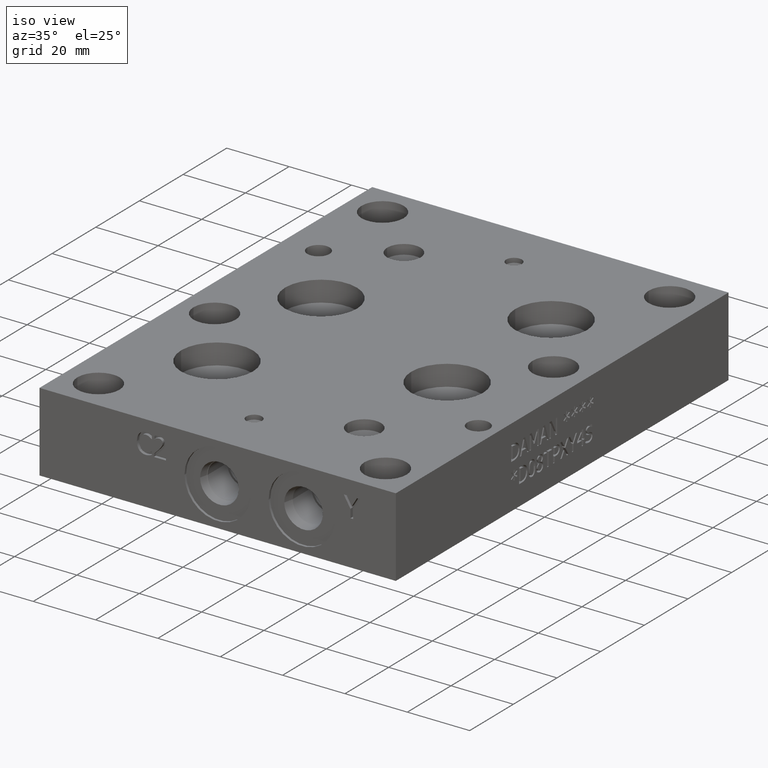
[diagram: clean part render]
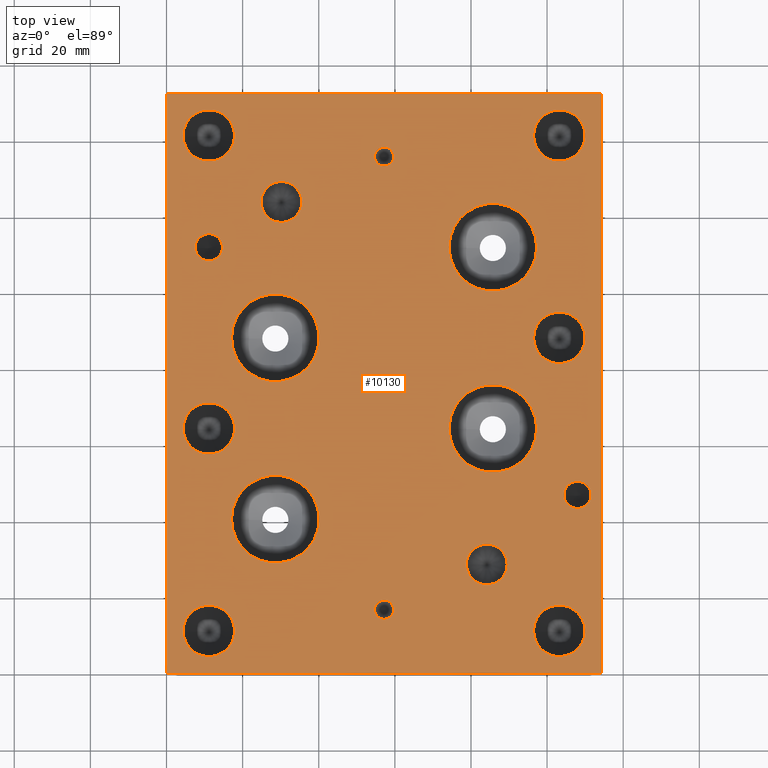
[diagram: tour spotlight — one face highlighted and labeled with its STEP entity id]
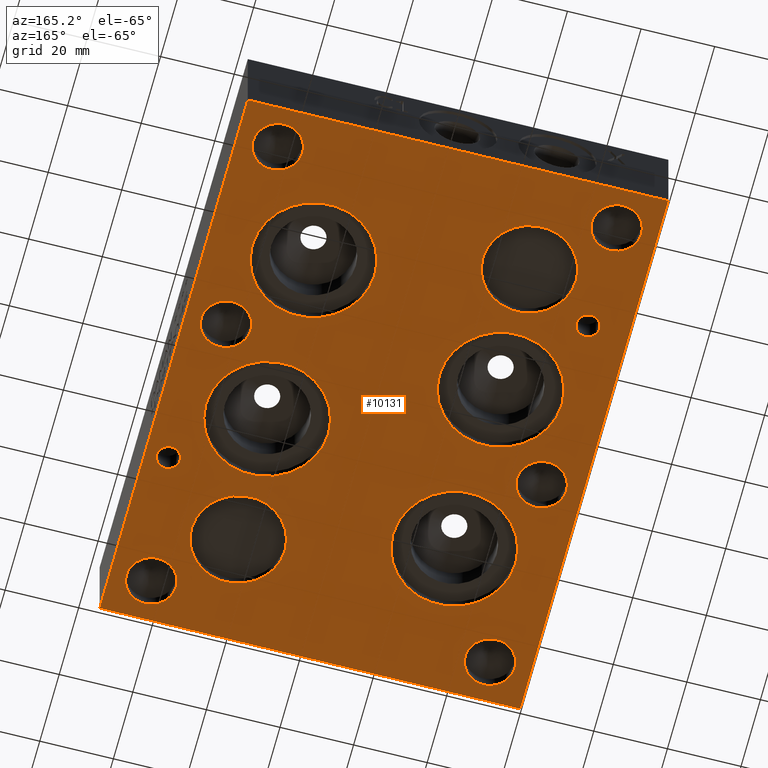
[diagram: tour spotlight — one face highlighted and labeled with its STEP entity id]
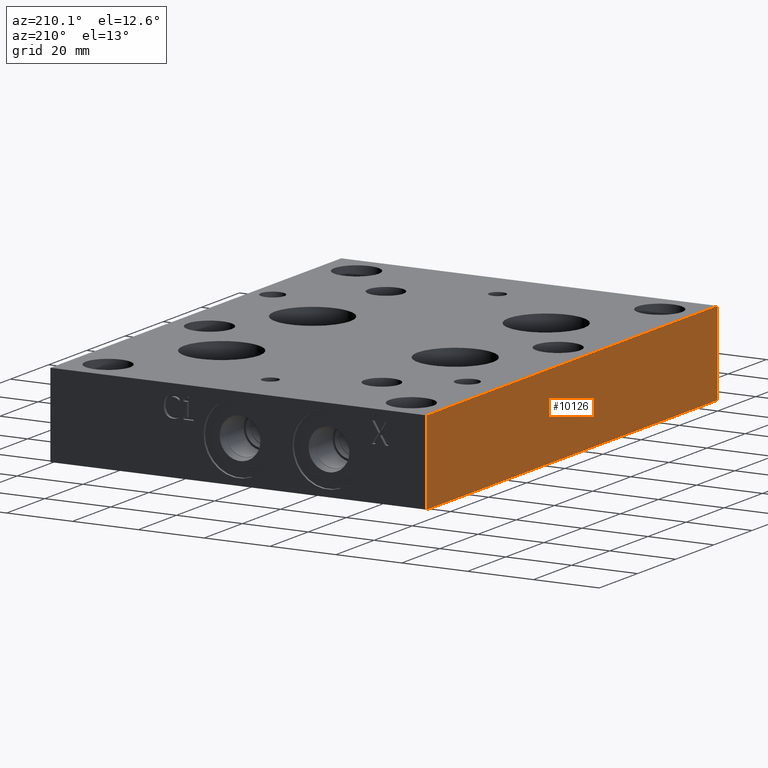
[diagram: tour spotlight — one face highlighted and labeled with its STEP entity id]
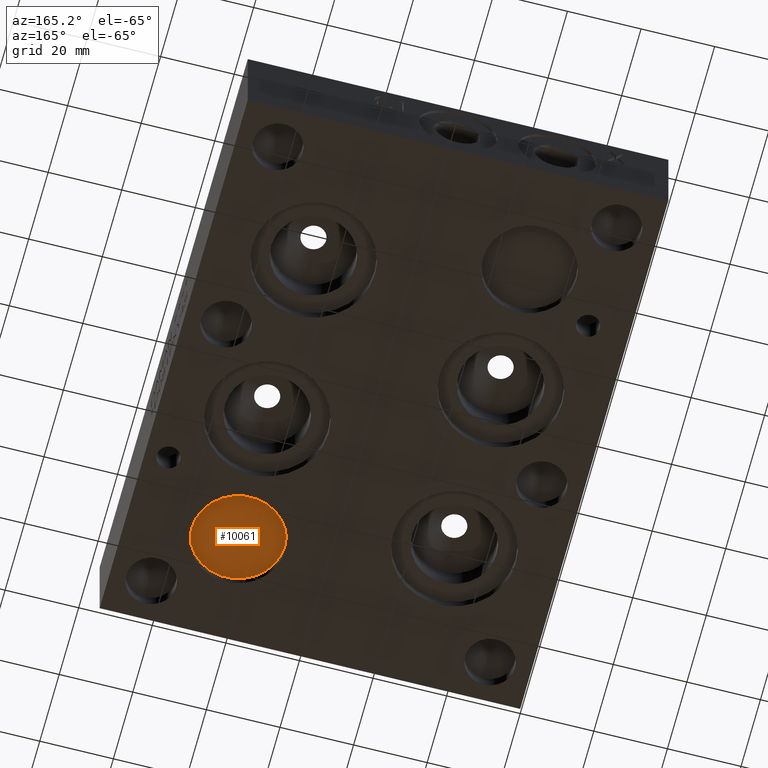
[diagram: tour spotlight — one face highlighted and labeled with its STEP entity id]
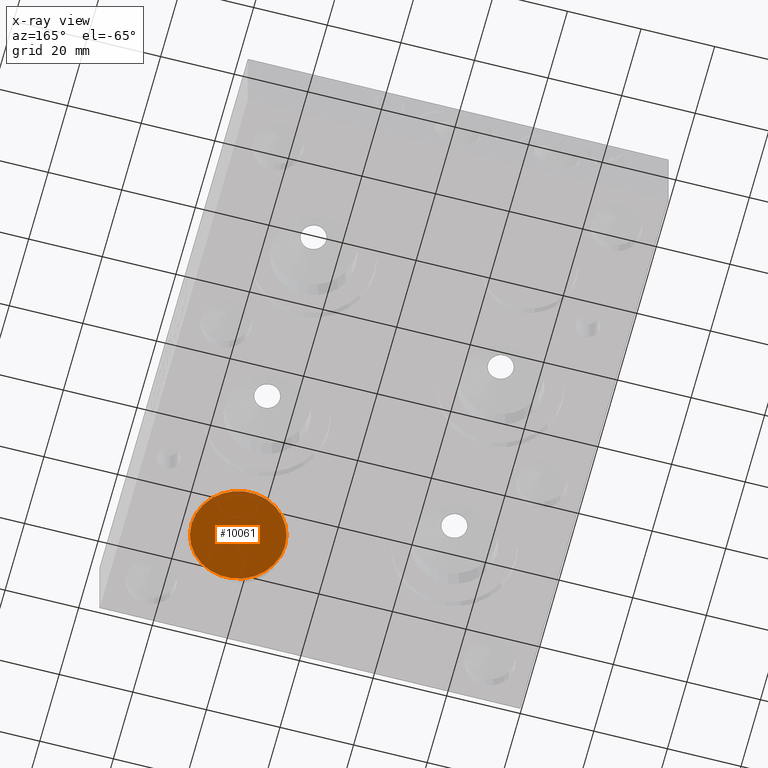
[diagram: x-ray of the same camera — body ghosted, this tour face saturated]
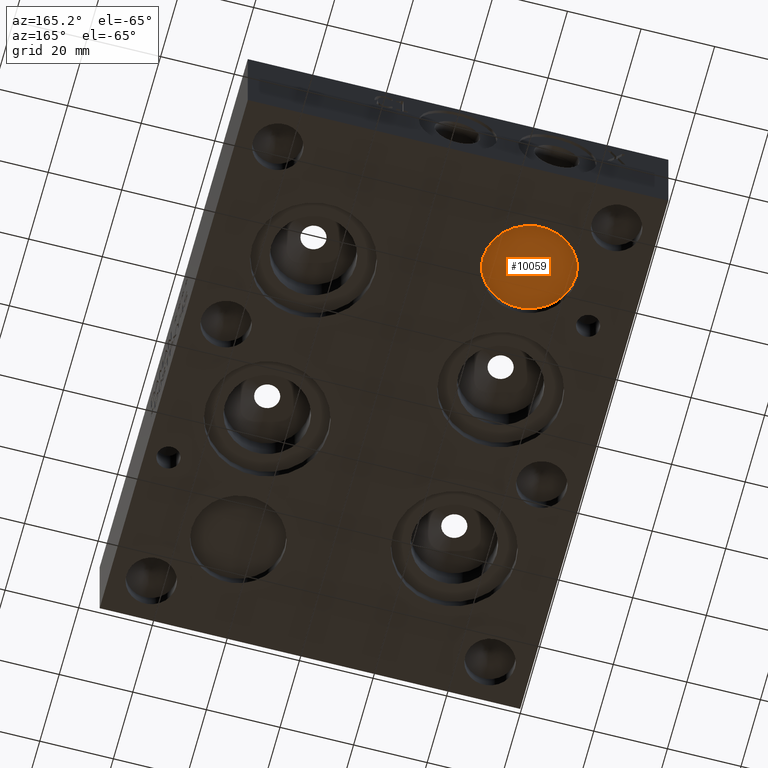
[diagram: tour spotlight — one face highlighted and labeled with its STEP entity id]
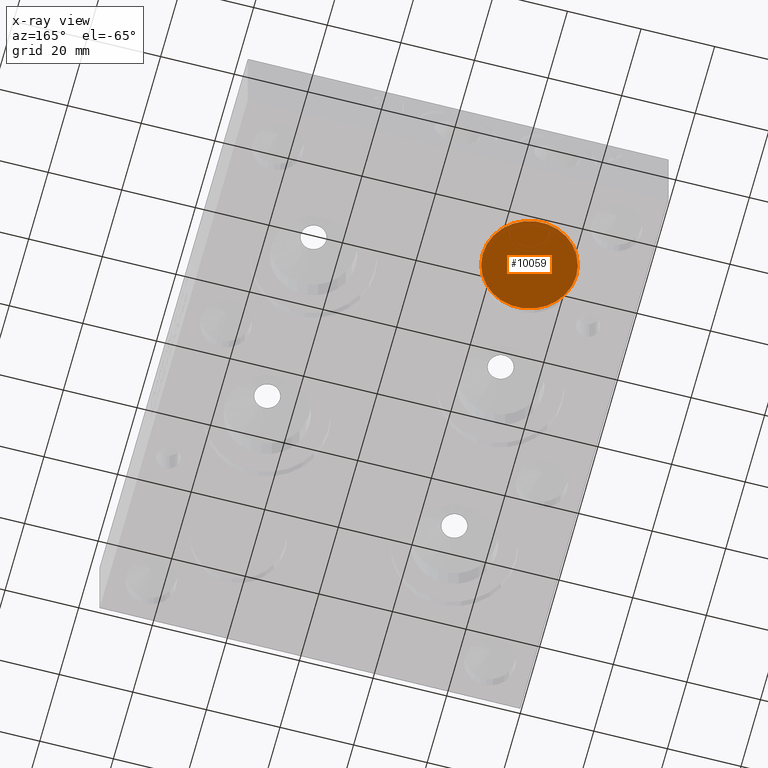
[diagram: x-ray of the same camera — body ghosted, this tour face saturated]
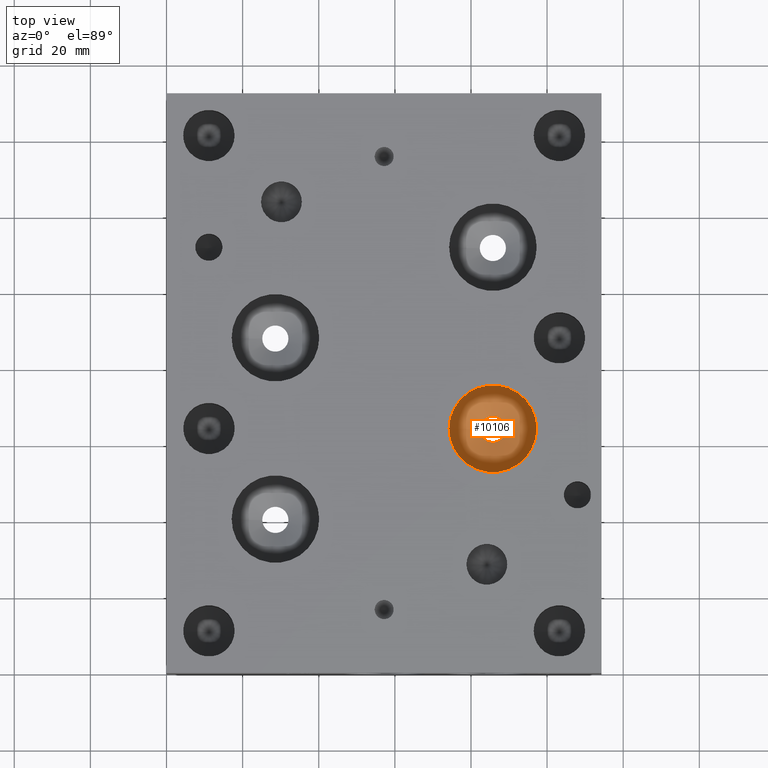
[diagram: tour spotlight — one face highlighted and labeled with its STEP entity id]
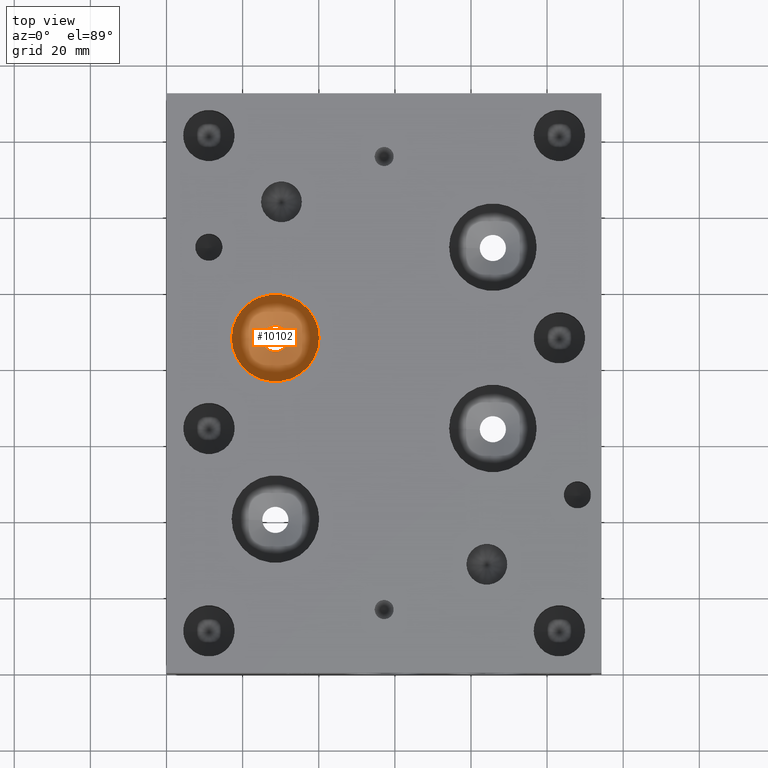
[diagram: tour spotlight — one face highlighted and labeled with its STEP entity id]
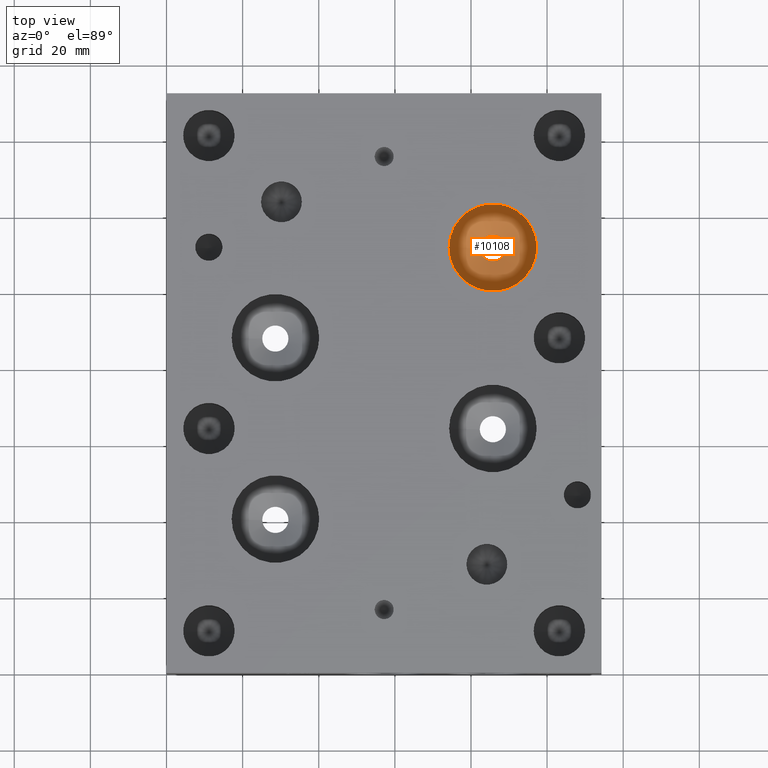
[diagram: tour spotlight — one face highlighted and labeled with its STEP entity id]
A machine part: a face-by-face anatomy tour. The part has 511 B-rep faces; the first image is the clean iso view, then the 8 largest visible faces are spotlighted one at a time (largest first), each with its STEP entity span.

Face 1 — top view, entity #10130. In plain terms, the highlighted planar face has unit normal (0, 0, 1).
Definition (entity closure, byte-faithful):
#207=CIRCLE('',#10648,2.5019);
#208=CIRCLE('',#10649,2.5019);
#211=CIRCLE('',#10654,2.5019);
#212=CIRCLE('',#10655,2.5019);
#215=CIRCLE('',#10660,5.3594);
#216=CIRCLE('',#10661,5.3594);
#219=CIRCLE('',#10666,5.3594);
#220=CIRCLE('',#10667,5.3594);
#223=CIRCLE('',#10672,11.5062);
#224=CIRCLE('',#10673,11.5062);
#227=CIRCLE('',#10678,11.5062);
#228=CIRCLE('',#10679,11.5062);
#231=CIRCLE('',#10684,11.50874);
#232=CIRCLE('',#10685,11.50874);
#235=CIRCLE('',#10690,11.50874);
#236=CIRCLE('',#10691,11.50874);
#239=CIRCLE('',#10696,3.5687);
#240=CIRCLE('',#10697,3.5687);
#243=CIRCLE('',#10702,3.5687);
#244=CIRCLE('',#10703,3.5687);
#247=CIRCLE('',#10708,6.7564);
#248=CIRCLE('',#10709,6.7564);
#251=CIRCLE('',#10714,6.7564);
#252=CIRCLE('',#10715,6.7564);
#255=CIRCLE('',#10720,6.7564);
#256=CIRCLE('',#10721,6.7564);
#259=CIRCLE('',#10726,6.7564);
#260=CIRCLE('',#10727,6.7564);
#263=CIRCLE('',#10732,6.7564);
#264=CIRCLE('',#10733,6.7564);
#267=CIRCLE('',#10738,6.7564);
#268=CIRCLE('',#10739,6.7564);
#362=FACE_BOUND('',#1807,.T.);
#363=FACE_BOUND('',#1808,.T.);
#364=FACE_BOUND('',#1809,.T.);
#365=FACE_BOUND('',#1810,.T.);
#366=FACE_BOUND('',#1811,.T.);
#367=FACE_BOUND('',#1812,.T.);
#368=FACE_BOUND('',#1813,.T.);
#369=FACE_BOUND('',#1814,.T.);
#370=FACE_BOUND('',#1815,.T.);
#371=FACE_BOUND('',#1816,.T.);
#372=FACE_BOUND('',#1817,.T.);
#373=FACE_BOUND('',#1818,.T.);
#374=FACE_BOUND('',#1819,.T.);
#375=FACE_BOUND('',#1820,.T.);
#376=FACE_BOUND('',#1821,.T.);
#377=FACE_BOUND('',#1822,.T.);
#1246=FACE_OUTER_BOUND('',#1806,.T.);
#1806=EDGE_LOOP('',(#8864,#8865,#8866,#8867));
#1807=EDGE_LOOP('',(#8868,#8869));
#1808=EDGE_LOOP('',(#8870,#8871));
#1809=EDGE_LOOP('',(#8872,#8873));
#1810=EDGE_LOOP('',(#8874,#8875));
#1811=EDGE_LOOP('',(#8876,#8877));
#1812=EDGE_LOOP('',(#8878,#8879));
#1813=EDGE_LOOP('',(#8880,#8881));
#1814=EDGE_LOOP('',(#8882,#8883));
#1815=EDGE_LOOP('',(#8884,#8885));
#1816=EDGE_LOOP('',(#8886,#8887));
#1817=EDGE_LOOP('',(#8888,#8889));
#1818=EDGE_LOOP('',(#8890,#8891));
#1819=EDGE_LOOP('',(#8892,#8893));
#1820=EDGE_LOOP('',(#8894,#8895));
#1821=EDGE_LOOP('',(#8896,#8897));
#1822=EDGE_LOOP('',(#8898,#8899));
#2143=LINE('',#14608,#3109);
#2798=LINE('',#17272,#3764);
#2801=LINE('',#17276,#3767);
#2803=LINE('',#17280,#3769);
#3109=VECTOR('',#11233,10.);
#3764=VECTOR('',#12898,10.);
#3767=VECTOR('',#12903,10.);
#3769=VECTOR('',#12909,10.);
#4058=VERTEX_POINT('',#14605);
#4059=VERTEX_POINT('',#14607);
#4655=VERTEX_POINT('',#17069);
#4656=VERTEX_POINT('',#17070);
#4660=VERTEX_POINT('',#17082);
#4661=VERTEX_POINT('',#17083);
#4665=VERTEX_POINT('',#17095);
#4666=VERTEX_POINT('',#17096);
#4670=VERTEX_POINT('',#17108);
#4671=VERTEX_POINT('',#17109);
#4674=VERTEX_POINT('',#17120);
#4675=VERTEX_POINT('',#17121);
#4678=VERTEX_POINT('',#17132);
#4679=VERTEX_POINT('',#17133);
#4682=VERTEX_POINT('',#17144);
#4683=VERTEX_POINT('',#17145);
#4686=VERTEX_POINT('',#17156);
#4687=VERTEX_POINT('',#17157);
#4691=VERTEX_POINT('',#17169);
#4692=VERTEX_POINT('',#17170);
#4696=VERTEX_POINT('',#17182);
#4697=VERTEX_POINT('',#17183);
#4701=VERTEX_POINT('',#17195);
#4702=VERTEX_POINT('',#17196);
#4706=VERTEX_POINT('',#17208);
#4707=VERTEX_POINT('',#17209);
#4711=VERTEX_POINT('',#17221);
#4712=VERTEX_POINT('',#17222);
#4716=VERTEX_POINT('',#17234);
#4717=VERTEX_POINT('',#17235);
#4721=VERTEX_POINT('',#17247);
#4722=VERTEX_POINT('',#17248);
#4726=VERTEX_POINT('',#17260);
#4727=VERTEX_POINT('',#17261);
#4730=VERTEX_POINT('',#17269);
#4731=VERTEX_POINT('',#17271);
#5163=EDGE_CURVE('',#4059,#4058,#2143,.T.);
#6031=EDGE_CURVE('',#4655,#4656,#207,.T.);
#6032=EDGE_CURVE('',#4656,#4655,#208,.T.);
#6037=EDGE_CURVE('',#4660,#4661,#211,.T.);
#6038=EDGE_CURVE('',#4661,#4660,#212,.T.);
#6043=EDGE_CURVE('',#4665,#4666,#215,.T.);
#6044=EDGE_CURVE('',#4666,#4665,#216,.T.);
#6049=EDGE_CURVE('',#4670,#4671,#219,.T.);
#6050=EDGE_CURVE('',#4671,#4670,#220,.T.);
#6055=EDGE_CURVE('',#4674,#4675,#223,.T.);
#6056=EDGE_CURVE('',#4675,#4674,#224,.T.);
#6061=EDGE_CURVE('',#4678,#4679,#227,.T.);
#6062=EDGE_CURVE('',#4679,#4678,#228,.T.);
#6067=EDGE_CURVE('',#4682,#4683,#231,.T.);
#6068=EDGE_CURVE('',#4683,#4682,#232,.T.);
#6073=EDGE_CURVE('',#4686,#4687,#235,.T.);
#6074=EDGE_CURVE('',#4687,#4686,#236,.T.);
#6079=EDGE_CURVE('',#4691,#4692,#239,.T.);
#6080=EDGE_CURVE('',#4692,#4691,#240,.T.);
#6085=EDGE_CURVE('',#4696,#4697,#243,.T.);
#6086=EDGE_CURVE('',#4697,#4696,#244,.T.);
#6091=EDGE_CURVE('',#4701,#4702,#247,.T.);
#6092=EDGE_CURVE('',#4702,#4701,#248,.T.);
#6097=EDGE_CURVE('',#4706,#4707,#251,.T.);
#6098=EDGE_CURVE('',#4707,#4706,#252,.T.);
#6103=EDGE_CURVE('',#4711,#4712,#255,.T.);
#6104=EDGE_CURVE('',#4712,#4711,#256,.T.);
#6109=EDGE_CURVE('',#4716,#4717,#259,.T.);
#6110=EDGE_CURVE('',#4717,#4716,#260,.T.);
#6115=EDGE_CURVE('',#4721,#4722,#263,.T.);
#6116=EDGE_CURVE('',#4722,#4721,#264,.T.);
#6121=EDGE_CURVE('',#4726,#4727,#267,.T.);
#6122=EDGE_CURVE('',#4727,#4726,#268,.T.);
#6126=EDGE_CURVE('',#4731,#4730,#2798,.T.);
#6129=EDGE_CURVE('',#4058,#4731,#2801,.T.);
#6131=EDGE_CURVE('',#4730,#4059,#2803,.T.);
#8864=ORIENTED_EDGE('',*,*,#6131,.T.);
#8865=ORIENTED_EDGE('',*,*,#5163,.T.);
#8866=ORIENTED_EDGE('',*,*,#6129,.T.);
#8867=ORIENTED_EDGE('',*,*,#6126,.T.);
#8868=ORIENTED_EDGE('',*,*,#6031,.T.);
#8869=ORIENTED_EDGE('',*,*,#6032,.T.);
#8870=ORIENTED_EDGE('',*,*,#6037,.T.);
#8871=ORIENTED_EDGE('',*,*,#6038,.T.);
#8872=ORIENTED_EDGE('',*,*,#6043,.T.);
#8873=ORIENTED_EDGE('',*,*,#6044,.T.);
#8874=ORIENTED_EDGE('',*,*,#6049,.T.);
#8875=ORIENTED_EDGE('',*,*,#6050,.T.);
#8876=ORIENTED_EDGE('',*,*,#6055,.T.);
#8877=ORIENTED_EDGE('',*,*,#6056,.T.);
#8878=ORIENTED_EDGE('',*,*,#6061,.T.);
#8879=ORIENTED_EDGE('',*,*,#6062,.T.);
#8880=ORIENTED_EDGE('',*,*,#6067,.T.);
#8881=ORIENTED_EDGE('',*,*,#6068,.T.);
#8882=ORIENTED_EDGE('',*,*,#6073,.T.);
#8883=ORIENTED_EDGE('',*,*,#6074,.T.);
#8884=ORIENTED_EDGE('',*,*,#6079,.T.);
#8885=ORIENTED_EDGE('',*,*,#6080,.T.);
#8886=ORIENTED_EDGE('',*,*,#6085,.T.);
#8887=ORIENTED_EDGE('',*,*,#6086,.T.);
#8888=ORIENTED_EDGE('',*,*,#6091,.T.);
#8889=ORIENTED_EDGE('',*,*,#6092,.T.);
#8890=ORIENTED_EDGE('',*,*,#6097,.T.);
#8891=ORIENTED_EDGE('',*,*,#6098,.T.);
#8892=ORIENTED_EDGE('',*,*,#6103,.T.);
#8893=ORIENTED_EDGE('',*,*,#6104,.T.);
#8894=ORIENTED_EDGE('',*,*,#6109,.T.);
#8895=ORIENTED_EDGE('',*,*,#6110,.T.);
#8896=ORIENTED_EDGE('',*,*,#6115,.T.);
#8897=ORIENTED_EDGE('',*,*,#6116,.T.);
#8898=ORIENTED_EDGE('',*,*,#6121,.T.);
#8899=ORIENTED_EDGE('',*,*,#6122,.T.);
#9231=PLANE('',#10744);
#10130=ADVANCED_FACE('',(#1246,#362,#363,#364,#365,#366,#367,#368,#369,
#370,#371,#372,#373,#374,#375,#376,#377),#9231,.T.);
#10648=AXIS2_PLACEMENT_3D('',#17071,#12679,#12680);
#10649=AXIS2_PLACEMENT_3D('',#17072,#12681,#12682);
#10654=AXIS2_PLACEMENT_3D('',#17084,#12693,#12694);
#10655=AXIS2_PLACEMENT_3D('',#17085,#12695,#12696);
#10660=AXIS2_PLACEMENT_3D('',#17097,#12707,#12708);
#10661=AXIS2_PLACEMENT_3D('',#17098,#12709,#12710);
#10666=AXIS2_PLACEMENT_3D('',#17110,#12721,#12722);
#10667=AXIS2_PLACEMENT_3D('',#17111,#12723,#12724);
#10672=AXIS2_PLACEMENT_3D('',#17122,#12735,#12736);
#10673=AXIS2_PLACEMENT_3D('',#17123,#12737,#12738);
#10678=AXIS2_PLACEMENT_3D('',#17134,#12749,#12750);
#10679=AXIS2_PLACEMENT_3D('',#17135,#12751,#12752);
#10684=AXIS2_PLACEMENT_3D('',#17146,#12763,#12764);
#10685=AXIS2_PLACEMENT_3D('',#17147,#12765,#12766);
#10690=AXIS2_PLACEMENT_3D('',#17158,#12777,#12778);
#10691=AXIS2_PLACEMENT_3D('',#17159,#12779,#12780);
#10696=AXIS2_PLACEMENT_3D('',#17171,#12791,#12792);
#10697=AXIS2_PLACEMENT_3D('',#17172,#12793,#12794);
#10702=AXIS2_PLACEMENT_3D('',#17184,#12805,#12806);
#10703=AXIS2_PLACEMENT_3D('',#17185,#12807,#12808);
#10708=AXIS2_PLACEMENT_3D('',#17197,#12819,#12820);
#10709=AXIS2_PLACEMENT_3D('',#17198,#12821,#12822);
#10714=AXIS2_PLACEMENT_3D('',#17210,#12833,#12834);
#10715=AXIS2_PLACEMENT_3D('',#17211,#12835,#12836);
#10720=AXIS2_PLACEMENT_3D('',#17223,#12847,#12848);
#10721=AXIS2_PLACEMENT_3D('',#17224,#12849,#12850);
#10726=AXIS2_PLACEMENT_3D('',#17236,#12861,#12862);
#10727=AXIS2_PLACEMENT_3D('',#17237,#12863,#12864);
#10732=AXIS2_PLACEMENT_3D('',#17249,#12875,#12876);
#10733=AXIS2_PLACEMENT_3D('',#17250,#12877,#12878);
#10738=AXIS2_PLACEMENT_3D('',#17262,#12889,#12890);
#10739=AXIS2_PLACEMENT_3D('',#17263,#12891,#12892);
#10744=AXIS2_PLACEMENT_3D('',#17281,#12910,#12911);
#11233=DIRECTION('',(0.,1.,0.));
#12679=DIRECTION('center_axis',(0.,0.,-1.));
#12680=DIRECTION('ref_axis',(1.,0.,0.));
#12681=DIRECTION('center_axis',(0.,0.,-1.));
#12682=DIRECTION('ref_axis',(1.,0.,0.));
#12693=DIRECTION('center_axis',(0.,0.,-1.));
#12694=DIRECTION('ref_axis',(1.,0.,0.));
#12695=DIRECTION('center_axis',(0.,0.,-1.));
#12696=DIRECTION('ref_axis',(1.,0.,0.));
#12707=DIRECTION('center_axis',(0.,0.,-1.));
#12708=DIRECTION('ref_axis',(1.,0.,0.));
#12709=DIRECTION('center_axis',(0.,0.,-1.));
#12710=DIRECTION('ref_axis',(1.,0.,0.));
#12721=DIRECTION('center_axis',(0.,0.,-1.));
#12722=DIRECTION('ref_axis',(1.,0.,0.));
#12723=DIRECTION('center_axis',(0.,0.,-1.));
#12724=DIRECTION('ref_axis',(1.,0.,0.));
#12735=DIRECTION('center_axis',(0.,0.,-1.));
#12736=DIRECTION('ref_axis',(1.,0.,0.));
#12737=DIRECTION('center_axis',(0.,0.,-1.));
#12738=DIRECTION('ref_axis',(1.,0.,0.));
#12749=DIRECTION('center_axis',(0.,0.,-1.));
#12750=DIRECTION('ref_axis',(1.,0.,0.));
#12751=DIRECTION('center_axis',(0.,0.,-1.));
#12752=DIRECTION('ref_axis',(1.,0.,0.));
#12763=DIRECTION('center_axis',(0.,0.,-1.));
#12764=DIRECTION('ref_axis',(1.,0.,0.));
#12765=DIRECTION('center_axis',(0.,0.,-1.));
#12766=DIRECTION('ref_axis',(1.,0.,0.));
#12777=DIRECTION('center_axis',(0.,0.,-1.));
#12778=DIRECTION('ref_axis',(1.,0.,0.));
#12779=DIRECTION('center_axis',(0.,0.,-1.));
#12780=DIRECTION('ref_axis',(1.,0.,0.));
#12791=DIRECTION('center_axis',(0.,0.,-1.));
#12792=DIRECTION('ref_axis',(1.,0.,0.));
#12793=DIRECTION('center_axis',(0.,0.,-1.));
#12794=DIRECTION('ref_axis',(1.,0.,0.));
#12805=DIRECTION('center_axis',(0.,0.,-1.));
#12806=DIRECTION('ref_axis',(1.,0.,0.));
#12807=DIRECTION('center_axis',(0.,0.,-1.));
#12808=DIRECTION('ref_axis',(1.,0.,0.));
#12819=DIRECTION('center_axis',(0.,0.,-1.));
#12820=DIRECTION('ref_axis',(1.,0.,0.));
#12821=DIRECTION('center_axis',(0.,0.,-1.));
#12822=DIRECTION('ref_axis',(1.,0.,0.));
#12833=DIRECTION('center_axis',(0.,0.,-1.));
#12834=DIRECTION('ref_axis',(1.,0.,0.));
#12835=DIRECTION('center_axis',(0.,0.,-1.));
#12836=DIRECTION('ref_axis',(1.,0.,0.));
#12847=DIRECTION('center_axis',(0.,0.,-1.));
#12848=DIRECTION('ref_axis',(1.,0.,0.));
#12849=DIRECTION('center_axis',(0.,0.,-1.));
#12850=DIRECTION('ref_axis',(1.,0.,0.));
#12861=DIRECTION('center_axis',(0.,0.,-1.));
#12862=DIRECTION('ref_axis',(1.,0.,0.));
#12863=DIRECTION('center_axis',(0.,0.,-1.));
#12864=DIRECTION('ref_axis',(1.,0.,0.));
#12875=DIRECTION('center_axis',(0.,0.,-1.));
#12876=DIRECTION('ref_axis',(1.,0.,0.));
#12877=DIRECTION('center_axis',(0.,0.,-1.));
#12878=DIRECTION('ref_axis',(1.,0.,0.));
#12889=DIRECTION('center_axis',(0.,0.,-1.));
#12890=DIRECTION('ref_axis',(1.,0.,0.));
#12891=DIRECTION('center_axis',(0.,0.,-1.));
#12892=DIRECTION('ref_axis',(1.,0.,0.));
#12898=DIRECTION('',(0.,-1.,0.));
#12903=DIRECTION('',(-1.,0.,0.));
#12909=DIRECTION('',(1.,0.,0.));
#12910=DIRECTION('center_axis',(0.,0.,1.));
#12911=DIRECTION('ref_axis',(1.,0.,0.));
#14605=CARTESIAN_POINT('',(114.3,152.4,25.4));
#14607=CARTESIAN_POINT('',(114.3,0.,25.4));
#14608=CARTESIAN_POINT('',(114.3,0.,25.4));
#17069=CARTESIAN_POINT('',(59.6773,135.7249,25.4));
#17070=CARTESIAN_POINT('',(54.6735,135.7249,25.4));
#17071=CARTESIAN_POINT('Origin',(57.1754,135.7249,25.4));
#17072=CARTESIAN_POINT('Origin',(57.1754,135.7249,25.4));
#17082=CARTESIAN_POINT('',(59.6773,16.6624,25.4));
#17083=CARTESIAN_POINT('',(54.6735,16.6624,25.4));
#17084=CARTESIAN_POINT('Origin',(57.1754,16.6624,25.4));
#17085=CARTESIAN_POINT('Origin',(57.1754,16.6624,25.4));
#17095=CARTESIAN_POINT('',(35.5473,123.81992,25.4));
#17096=CARTESIAN_POINT('',(24.8285,123.81992,25.4));
#17097=CARTESIAN_POINT('Origin',(30.1879,123.81992,25.4));
#17098=CARTESIAN_POINT('Origin',(30.1879,123.81992,25.4));
#17108=CARTESIAN_POINT('',(89.5223,28.56992,25.4));
#17109=CARTESIAN_POINT('',(78.8035,28.56992,25.4));
#17110=CARTESIAN_POINT('Origin',(84.1629,28.56992,25.4));
#17111=CARTESIAN_POINT('Origin',(84.1629,28.56992,25.4));
#17120=CARTESIAN_POINT('',(40.1066,88.1126,25.4));
#17121=CARTESIAN_POINT('',(17.0942,88.1126,25.4));
#17122=CARTESIAN_POINT('Origin',(28.6004,88.1126,25.4));
#17123=CARTESIAN_POINT('Origin',(28.6004,88.1126,25.4));
#17132=CARTESIAN_POINT('',(40.1066,40.4622,25.4));
#17133=CARTESIAN_POINT('',(17.0942,40.4622,25.4));
#17134=CARTESIAN_POINT('Origin',(28.6004,40.4622,25.4));
#17135=CARTESIAN_POINT('Origin',(28.6004,40.4622,25.4));
#17144=CARTESIAN_POINT('',(97.25914,64.2874,25.4));
#17145=CARTESIAN_POINT('',(74.24166,64.2874,25.4));
#17146=CARTESIAN_POINT('Origin',(85.7504,64.2874,25.4));
#17147=CARTESIAN_POINT('Origin',(85.7504,64.2874,25.4));
#17156=CARTESIAN_POINT('',(97.25914,111.9124,25.4));
#17157=CARTESIAN_POINT('',(74.24166,111.9124,25.4));
#17158=CARTESIAN_POINT('Origin',(85.7504,111.9124,25.4));
#17159=CARTESIAN_POINT('Origin',(85.7504,111.9124,25.4));
#17169=CARTESIAN_POINT('',(14.6939,111.9124,25.4));
#17170=CARTESIAN_POINT('',(7.5565,111.9124,25.4));
#17171=CARTESIAN_POINT('Origin',(11.1252,111.9124,25.4));
#17172=CARTESIAN_POINT('Origin',(11.1252,111.9124,25.4));
#17182=CARTESIAN_POINT('',(111.5441,46.8376,25.4));
#17183=CARTESIAN_POINT('',(104.4067,46.8376,25.4));
#17184=CARTESIAN_POINT('Origin',(107.9754,46.8376,25.4));
#17185=CARTESIAN_POINT('Origin',(107.9754,46.8376,25.4));
#17195=CARTESIAN_POINT('',(17.8943,11.10742,25.4));
#17196=CARTESIAN_POINT('',(4.3815,11.10742,25.4));
#17197=CARTESIAN_POINT('Origin',(11.1379,11.10742,25.4));
#17198=CARTESIAN_POINT('Origin',(11.1379,11.10742,25.4));
#17208=CARTESIAN_POINT('',(109.982,88.0999,25.4));
#17209=CARTESIAN_POINT('',(96.4692,88.0999,25.4));
#17210=CARTESIAN_POINT('Origin',(103.2256,88.0999,25.4));
#17211=CARTESIAN_POINT('Origin',(103.2256,88.0999,25.4));
#17221=CARTESIAN_POINT('',(17.8816,141.2748,25.4));
#17222=CARTESIAN_POINT('',(4.3688,141.2748,25.4));
#17223=CARTESIAN_POINT('Origin',(11.1252,141.2748,25.4));
#17224=CARTESIAN_POINT('Origin',(11.1252,141.2748,25.4));
#17234=CARTESIAN_POINT('',(109.9693,141.27988,25.4));
#17235=CARTESIAN_POINT('',(96.4565,141.27988,25.4));
#17236=CARTESIAN_POINT('Origin',(103.2129,141.27988,25.4));
#17237=CARTESIAN_POINT('Origin',(103.2129,141.27988,25.4));
#17247=CARTESIAN_POINT('',(109.9693,11.10742,25.4));
#17248=CARTESIAN_POINT('',(96.4565,11.10742,25.4));
#17249=CARTESIAN_POINT('Origin',(103.2129,11.10742,25.4));
#17250=CARTESIAN_POINT('Origin',(103.2129,11.10742,25.4));
#17260=CARTESIAN_POINT('',(17.907,64.2874,25.4));
#17261=CARTESIAN_POINT('',(4.3942,64.2874,25.4));
#17262=CARTESIAN_POINT('Origin',(11.1506,64.2874,25.4));
#17263=CARTESIAN_POINT('Origin',(11.1506,64.2874,25.4));
#17269=CARTESIAN_POINT('',(0.,0.,25.4));
#17271=CARTESIAN_POINT('',(0.,152.4,25.4));
#17272=CARTESIAN_POINT('',(0.,152.4,25.4));
#17276=CARTESIAN_POINT('',(114.3,152.4,25.4));
#17280=CARTESIAN_POINT('',(0.,0.,25.4));
#17281=CARTESIAN_POINT('Origin',(57.15,76.2,25.4));

Face 2 — auxiliary view, entity #10131. In plain terms, the highlighted planar face has unit normal (0, 0, 1).
Definition (entity closure, byte-faithful):
#133=CIRCLE('',#10537,12.7);
#134=CIRCLE('',#10538,12.7);
#137=CIRCLE('',#10543,12.7);
#138=CIRCLE('',#10544,12.7);
#147=CIRCLE('',#10557,16.6751);
#148=CIRCLE('',#10558,16.6751);
#155=CIRCLE('',#10569,16.6751);
#156=CIRCLE('',#10570,16.6751);
#163=CIRCLE('',#10581,16.6751);
#164=CIRCLE('',#10582,16.6751);
#171=CIRCLE('',#10593,16.6751);
#172=CIRCLE('',#10594,16.6751);
#175=CIRCLE('',#10600,3.175);
#176=CIRCLE('',#10601,3.175);
#179=CIRCLE('',#10606,3.175);
#180=CIRCLE('',#10607,3.175);
#183=CIRCLE('',#10612,6.7564);
#184=CIRCLE('',#10613,6.7564);
#187=CIRCLE('',#10618,6.7564);
#188=CIRCLE('',#10619,6.7564);
#191=CIRCLE('',#10624,6.7564);
#192=CIRCLE('',#10625,6.7564);
#195=CIRCLE('',#10630,6.7564);
#196=CIRCLE('',#10631,6.7564);
#199=CIRCLE('',#10636,6.7564);
#200=CIRCLE('',#10637,6.7564);
#203=CIRCLE('',#10642,6.7564);
#204=CIRCLE('',#10643,6.7564);
#378=FACE_BOUND('',#1824,.T.);
#379=FACE_BOUND('',#1825,.T.);
#380=FACE_BOUND('',#1826,.T.);
#381=FACE_BOUND('',#1827,.T.);
#382=FACE_BOUND('',#1828,.T.);
#383=FACE_BOUND('',#1829,.T.);
#384=FACE_BOUND('',#1830,.T.);
#385=FACE_BOUND('',#1831,.T.);
#386=FACE_BOUND('',#1832,.T.);
#387=FACE_BOUND('',#1833,.T.);
#388=FACE_BOUND('',#1834,.T.);
#389=FACE_BOUND('',#1835,.T.);
#390=FACE_BOUND('',#1836,.T.);
#391=FACE_BOUND('',#1837,.T.);
#1247=FACE_OUTER_BOUND('',#1823,.T.);
#1823=EDGE_LOOP('',(#8900,#8901,#8902,#8903));
#1824=EDGE_LOOP('',(#8904,#8905));
#1825=EDGE_LOOP('',(#8906,#8907));
#1826=EDGE_LOOP('',(#8908,#8909));
#1827=EDGE_LOOP('',(#8910,#8911));
#1828=EDGE_LOOP('',(#8912,#8913));
#1829=EDGE_LOOP('',(#8914,#8915));
#1830=EDGE_LOOP('',(#8916,#8917));
#1831=EDGE_LOOP('',(#8918,#8919));
#1832=EDGE_LOOP('',(#8920,#8921));
#1833=EDGE_LOOP('',(#8922,#8923));
#1834=EDGE_LOOP('',(#8924,#8925));
#1835=EDGE_LOOP('',(#8926,#8927));
#1836=EDGE_LOOP('',(#8928,#8929));
#1837=EDGE_LOOP('',(#8930,#8931));
#2141=LINE('',#14604,#3107);
#2796=LINE('',#17268,#3762);
#2800=LINE('',#17275,#3766);
#2802=LINE('',#17279,#3768);
#3107=VECTOR('',#11231,10.);
#3762=VECTOR('',#12896,10.);
#3766=VECTOR('',#12902,10.);
#3768=VECTOR('',#12908,10.);
#4056=VERTEX_POINT('',#14602);
#4057=VERTEX_POINT('',#14603);
#4572=VERTEX_POINT('',#16844);
#4573=VERTEX_POINT('',#16845);
#4576=VERTEX_POINT('',#16855);
#4577=VERTEX_POINT('',#16856);
#4586=VERTEX_POINT('',#16881);
#4587=VERTEX_POINT('',#16882);
#4594=VERTEX_POINT('',#16904);
#4595=VERTEX_POINT('',#16905);
#4602=VERTEX_POINT('',#16927);
#4603=VERTEX_POINT('',#16928);
#4610=VERTEX_POINT('',#16950);
#4611=VERTEX_POINT('',#16951);
#4615=VERTEX_POINT('',#16965);
#4616=VERTEX_POINT('',#16966);
#4620=VERTEX_POINT('',#16978);
#4621=VERTEX_POINT('',#16979);
#4625=VERTEX_POINT('',#16991);
#4626=VERTEX_POINT('',#16992);
#4630=VERTEX_POINT('',#17004);
#4631=VERTEX_POINT('',#17005);
#4635=VERTEX_POINT('',#17017);
#4636=VERTEX_POINT('',#17018);
#4640=VERTEX_POINT('',#17030);
#4641=VERTEX_POINT('',#17031);
#4645=VERTEX_POINT('',#17043);
#4646=VERTEX_POINT('',#17044);
#4650=VERTEX_POINT('',#17056);
#4651=VERTEX_POINT('',#17057);
#4728=VERTEX_POINT('',#17266);
#4729=VERTEX_POINT('',#17267);
#5161=EDGE_CURVE('',#4056,#4057,#2141,.T.);
#5926=EDGE_CURVE('',#4572,#4573,#133,.T.);
#5927=EDGE_CURVE('',#4573,#4572,#134,.T.);
#5931=EDGE_CURVE('',#4576,#4577,#137,.T.);
#5932=EDGE_CURVE('',#4577,#4576,#138,.T.);
#5943=EDGE_CURVE('',#4586,#4587,#147,.T.);
#5944=EDGE_CURVE('',#4587,#4586,#148,.T.);
#5954=EDGE_CURVE('',#4594,#4595,#155,.T.);
#5955=EDGE_CURVE('',#4595,#4594,#156,.T.);
#5965=EDGE_CURVE('',#4602,#4603,#163,.T.);
#5966=EDGE_CURVE('',#4603,#4602,#164,.T.);
#5976=EDGE_CURVE('',#4610,#4611,#171,.T.);
#5977=EDGE_CURVE('',#4611,#4610,#172,.T.);
#5983=EDGE_CURVE('',#4615,#4616,#175,.T.);
#5984=EDGE_CURVE('',#4616,#4615,#176,.T.);
#5989=EDGE_CURVE('',#4620,#4621,#179,.T.);
#5990=EDGE_CURVE('',#4621,#4620,#180,.T.);
#5995=EDGE_CURVE('',#4625,#4626,#183,.T.);
#5996=EDGE_CURVE('',#4626,#4625,#184,.T.);
#6001=EDGE_CURVE('',#4630,#4631,#187,.T.);
#6002=EDGE_CURVE('',#4631,#4630,#188,.T.);
#6007=EDGE_CURVE('',#4635,#4636,#191,.T.);
#6008=EDGE_CURVE('',#4636,#4635,#192,.T.);
#6013=EDGE_CURVE('',#4640,#4641,#195,.T.);
#6014=EDGE_CURVE('',#4641,#4640,#196,.T.);
#6019=EDGE_CURVE('',#4645,#4646,#199,.T.);
#6020=EDGE_CURVE('',#4646,#4645,#200,.T.);
#6025=EDGE_CURVE('',#4650,#4651,#203,.T.);
#6026=EDGE_CURVE('',#4651,#4650,#204,.T.);
#6124=EDGE_CURVE('',#4728,#4729,#2796,.T.);
#6128=EDGE_CURVE('',#4057,#4728,#2800,.T.);
#6130=EDGE_CURVE('',#4729,#4056,#2802,.T.);
#8900=ORIENTED_EDGE('',*,*,#6130,.F.);
#8901=ORIENTED_EDGE('',*,*,#6124,.F.);
#8902=ORIENTED_EDGE('',*,*,#6128,.F.);
#8903=ORIENTED_EDGE('',*,*,#5161,.F.);
#8904=ORIENTED_EDGE('',*,*,#5926,.T.);
#8905=ORIENTED_EDGE('',*,*,#5927,.T.);
#8906=ORIENTED_EDGE('',*,*,#5931,.T.);
#8907=ORIENTED_EDGE('',*,*,#5932,.T.);
#8908=ORIENTED_EDGE('',*,*,#5943,.T.);
#8909=ORIENTED_EDGE('',*,*,#5944,.T.);
#8910=ORIENTED_EDGE('',*,*,#5954,.T.);
#8911=ORIENTED_EDGE('',*,*,#5955,.T.);
#8912=ORIENTED_EDGE('',*,*,#5965,.T.);
#8913=ORIENTED_EDGE('',*,*,#5966,.T.);
#8914=ORIENTED_EDGE('',*,*,#5976,.T.);
#8915=ORIENTED_EDGE('',*,*,#5977,.T.);
#8916=ORIENTED_EDGE('',*,*,#5983,.T.);
#8917=ORIENTED_EDGE('',*,*,#5984,.T.);
#8918=ORIENTED_EDGE('',*,*,#5989,.T.);
#8919=ORIENTED_EDGE('',*,*,#5990,.T.);
#8920=ORIENTED_EDGE('',*,*,#5995,.T.);
#8921=ORIENTED_EDGE('',*,*,#5996,.T.);
#8922=ORIENTED_EDGE('',*,*,#6001,.T.);
#8923=ORIENTED_EDGE('',*,*,#6002,.T.);
#8924=ORIENTED_EDGE('',*,*,#6007,.T.);
#8925=ORIENTED_EDGE('',*,*,#6008,.T.);
#8926=ORIENTED_EDGE('',*,*,#6013,.T.);
#8927=ORIENTED_EDGE('',*,*,#6014,.T.);
#8928=ORIENTED_EDGE('',*,*,#6019,.T.);
#8929=ORIENTED_EDGE('',*,*,#6020,.T.);
#8930=ORIENTED_EDGE('',*,*,#6025,.T.);
#8931=ORIENTED_EDGE('',*,*,#6026,.T.);
#9232=PLANE('',#10745);
#10131=ADVANCED_FACE('',(#1247,#378,#379,#380,#381,#382,#383,#384,#385,
#386,#387,#388,#389,#390,#391),#9232,.F.);
#10537=AXIS2_PLACEMENT_3D('',#16846,#12426,#12427);
#10538=AXIS2_PLACEMENT_3D('',#16847,#12428,#12429);
#10543=AXIS2_PLACEMENT_3D('',#16857,#12439,#12440);
#10544=AXIS2_PLACEMENT_3D('',#16858,#12441,#12442);
#10557=AXIS2_PLACEMENT_3D('',#16883,#12469,#12470);
#10558=AXIS2_PLACEMENT_3D('',#16884,#12471,#12472);
#10569=AXIS2_PLACEMENT_3D('',#16906,#12496,#12497);
#10570=AXIS2_PLACEMENT_3D('',#16907,#12498,#12499);
#10581=AXIS2_PLACEMENT_3D('',#16929,#12523,#12524);
#10582=AXIS2_PLACEMENT_3D('',#16930,#12525,#12526);
#10593=AXIS2_PLACEMENT_3D('',#16952,#12550,#12551);
#10594=AXIS2_PLACEMENT_3D('',#16953,#12552,#12553);
#10600=AXIS2_PLACEMENT_3D('',#16967,#12567,#12568);
#10601=AXIS2_PLACEMENT_3D('',#16968,#12569,#12570);
#10606=AXIS2_PLACEMENT_3D('',#16980,#12581,#12582);
#10607=AXIS2_PLACEMENT_3D('',#16981,#12583,#12584);
#10612=AXIS2_PLACEMENT_3D('',#16993,#12595,#12596);
#10613=AXIS2_PLACEMENT_3D('',#16994,#12597,#12598);
#10618=AXIS2_PLACEMENT_3D('',#17006,#12609,#12610);
#10619=AXIS2_PLACEMENT_3D('',#17007,#12611,#12612);
#10624=AXIS2_PLACEMENT_3D('',#17019,#12623,#12624);
#10625=AXIS2_PLACEMENT_3D('',#17020,#12625,#12626);
#10630=AXIS2_PLACEMENT_3D('',#17032,#12637,#12638);
#10631=AXIS2_PLACEMENT_3D('',#17033,#12639,#12640);
#10636=AXIS2_PLACEMENT_3D('',#17045,#12651,#12652);
#10637=AXIS2_PLACEMENT_3D('',#17046,#12653,#12654);
#10642=AXIS2_PLACEMENT_3D('',#17058,#12665,#12666);
#10643=AXIS2_PLACEMENT_3D('',#17059,#12667,#12668);
#10745=AXIS2_PLACEMENT_3D('',#17282,#12912,#12913);
#11231=DIRECTION('',(0.,1.,0.));
#12426=DIRECTION('center_axis',(0.,0.,1.));
#12427=DIRECTION('ref_axis',(1.,0.,0.));
#12428=DIRECTION('center_axis',(0.,0.,1.));
#12429=DIRECTION('ref_axis',(1.,0.,0.));
#12439=DIRECTION('center_axis',(0.,0.,1.));
#12440=DIRECTION('ref_axis',(1.,0.,0.));
#12441=DIRECTION('center_axis',(0.,0.,1.));
#12442=DIRECTION('ref_axis',(1.,0.,0.));
#12469=DIRECTION('center_axis',(0.,0.,1.));
#12470=DIRECTION('ref_axis',(1.,0.,0.));
#12471=DIRECTION('center_axis',(0.,0.,1.));
#12472=DIRECTION('ref_axis',(1.,0.,0.));
#12496=DIRECTION('center_axis',(0.,0.,1.));
#12497=DIRECTION('ref_axis',(1.,0.,0.));
#12498=DIRECTION('center_axis',(0.,0.,1.));
#12499=DIRECTION('ref_axis',(1.,0.,0.));
#12523=DIRECTION('center_axis',(0.,0.,1.));
#12524=DIRECTION('ref_axis',(1.,0.,0.));
#12525=DIRECTION('center_axis',(0.,0.,1.));
#12526=DIRECTION('ref_axis',(1.,0.,0.));
#12550=DIRECTION('center_axis',(0.,0.,1.));
#12551=DIRECTION('ref_axis',(1.,0.,0.));
#12552=DIRECTION('center_axis',(0.,0.,1.));
#12553=DIRECTION('ref_axis',(1.,0.,0.));
#12567=DIRECTION('center_axis',(0.,0.,1.));
#12568=DIRECTION('ref_axis',(1.,0.,0.));
#12569=DIRECTION('center_axis',(0.,0.,1.));
#12570=DIRECTION('ref_axis',(1.,0.,0.));
#12581=DIRECTION('center_axis',(0.,0.,1.));
#12582=DIRECTION('ref_axis',(1.,0.,0.));
#12583=DIRECTION('center_axis',(0.,0.,1.));
#12584=DIRECTION('ref_axis',(1.,0.,0.));
#12595=DIRECTION('center_axis',(0.,0.,1.));
#12596=DIRECTION('ref_axis',(1.,0.,0.));
#12597=DIRECTION('center_axis',(0.,0.,1.));
#12598=DIRECTION('ref_axis',(1.,0.,0.));
#12609=DIRECTION('center_axis',(0.,0.,1.));
#12610=DIRECTION('ref_axis',(1.,0.,0.));
#12611=DIRECTION('center_axis',(0.,0.,1.));
#12612=DIRECTION('ref_axis',(1.,0.,0.));
#12623=DIRECTION('center_axis',(0.,0.,1.));
#12624=DIRECTION('ref_axis',(1.,0.,0.));
#12625=DIRECTION('center_axis',(0.,0.,1.));
#12626=DIRECTION('ref_axis',(1.,0.,0.));
#12637=DIRECTION('center_axis',(0.,0.,1.));
#12638=DIRECTION('ref_axis',(1.,0.,0.));
#12639=DIRECTION('center_axis',(0.,0.,1.));
#12640=DIRECTION('ref_axis',(1.,0.,0.));
#12651=DIRECTION('center_axis',(0.,0.,1.));
#12652=DIRECTION('ref_axis',(1.,0.,0.));
#12653=DIRECTION('center_axis',(0.,0.,1.));
#12654=DIRECTION('ref_axis',(1.,0.,0.));
#12665=DIRECTION('center_axis',(0.,0.,1.));
#12666=DIRECTION('ref_axis',(1.,0.,0.));
#12667=DIRECTION('center_axis',(0.,0.,1.));
#12668=DIRECTION('ref_axis',(1.,0.,0.));
#12896=DIRECTION('',(0.,-1.,0.));
#12902=DIRECTION('',(-1.,0.,0.));
#12908=DIRECTION('',(1.,0.,0.));
#12912=DIRECTION('center_axis',(0.,0.,1.));
#12913=DIRECTION('ref_axis',(1.,0.,0.));
#14602=CARTESIAN_POINT('',(114.3,0.,0.));
#14603=CARTESIAN_POINT('',(114.3,152.4,0.));
#14604=CARTESIAN_POINT('',(114.3,0.,0.));
#16844=CARTESIAN_POINT('',(42.9006,123.825,0.));
#16845=CARTESIAN_POINT('',(17.5006,123.825,0.));
#16846=CARTESIAN_POINT('Origin',(30.2006,123.825,0.));
#16847=CARTESIAN_POINT('Origin',(30.2006,123.825,0.));
#16855=CARTESIAN_POINT('',(96.8756,28.575,0.));
#16856=CARTESIAN_POINT('',(71.4756,28.575,0.));
#16857=CARTESIAN_POINT('Origin',(84.1756,28.575,0.));
#16858=CARTESIAN_POINT('Origin',(84.1756,28.575,0.));
#16881=CARTESIAN_POINT('',(45.2755,88.1126,0.));
#16882=CARTESIAN_POINT('',(11.9253,88.1126,0.));
#16883=CARTESIAN_POINT('Origin',(28.6004,88.1126,0.));
#16884=CARTESIAN_POINT('Origin',(28.6004,88.1126,0.));
#16904=CARTESIAN_POINT('',(102.4255,64.2874,0.));
#16905=CARTESIAN_POINT('',(69.0753,64.2874,0.));
#16906=CARTESIAN_POINT('Origin',(85.7504,64.2874,0.));
#16907=CARTESIAN_POINT('Origin',(85.7504,64.2874,0.));
#16927=CARTESIAN_POINT('',(102.4255,111.9124,0.));
#16928=CARTESIAN_POINT('',(69.0753,111.9124,0.));
#16929=CARTESIAN_POINT('Origin',(85.7504,111.9124,0.));
#16930=CARTESIAN_POINT('Origin',(85.7504,111.9124,0.));
#16950=CARTESIAN_POINT('',(45.2755,40.4622,0.));
#16951=CARTESIAN_POINT('',(11.9253,40.4622,0.));
#16952=CARTESIAN_POINT('Origin',(28.6004,40.4622,0.));
#16953=CARTESIAN_POINT('Origin',(28.6004,40.4622,0.));
#16965=CARTESIAN_POINT('',(14.3002,111.9124,0.));
#16966=CARTESIAN_POINT('',(7.9502,111.9124,5.55111512312578E-16));
#16967=CARTESIAN_POINT('Origin',(11.1252,111.9124,0.));
#16968=CARTESIAN_POINT('Origin',(11.1252,111.9124,0.));
#16978=CARTESIAN_POINT('',(111.1504,46.8376,0.));
#16979=CARTESIAN_POINT('',(104.8004,46.8376,5.55111512312578E-16));
#16980=CARTESIAN_POINT('Origin',(107.9754,46.8376,0.));
#16981=CARTESIAN_POINT('Origin',(107.9754,46.8376,0.));
#16991=CARTESIAN_POINT('',(17.8943,11.0998,0.));
#16992=CARTESIAN_POINT('',(4.3815,11.0998,0.));
#16993=CARTESIAN_POINT('Origin',(11.1379,11.0998,0.));
#16994=CARTESIAN_POINT('Origin',(11.1379,11.0998,0.));
#17004=CARTESIAN_POINT('',(109.982,88.0872,0.));
#17005=CARTESIAN_POINT('',(96.4692,88.0872,0.));
#17006=CARTESIAN_POINT('Origin',(103.2256,88.0872,0.));
#17007=CARTESIAN_POINT('Origin',(103.2256,88.0872,0.));
#17017=CARTESIAN_POINT('',(17.8816,141.2748,0.));
#17018=CARTESIAN_POINT('',(4.3688,141.2748,0.));
#17019=CARTESIAN_POINT('Origin',(11.1252,141.2748,0.));
#17020=CARTESIAN_POINT('Origin',(11.1252,141.2748,0.));
#17030=CARTESIAN_POINT('',(109.9693,141.26972,0.));
#17031=CARTESIAN_POINT('',(96.4565,141.26972,0.));
#17032=CARTESIAN_POINT('Origin',(103.2129,141.26972,0.));
#17033=CARTESIAN_POINT('Origin',(103.2129,141.26972,0.));
#17043=CARTESIAN_POINT('',(109.9693,11.0998,0.));
#17044=CARTESIAN_POINT('',(96.4565,11.0998,0.));
#17045=CARTESIAN_POINT('Origin',(103.2129,11.0998,0.));
#17046=CARTESIAN_POINT('Origin',(103.2129,11.0998,0.));
#17056=CARTESIAN_POINT('',(17.907,64.2874,0.));
#17057=CARTESIAN_POINT('',(4.3942,64.2874,0.));
#17058=CARTESIAN_POINT('Origin',(11.1506,64.2874,0.));
#17059=CARTESIAN_POINT('Origin',(11.1506,64.2874,0.));
#17266=CARTESIAN_POINT('',(0.,152.4,0.));
#17267=CARTESIAN_POINT('',(0.,0.,0.));
#17268=CARTESIAN_POINT('',(0.,152.4,0.));
#17275=CARTESIAN_POINT('',(114.3,152.4,0.));
#17279=CARTESIAN_POINT('',(0.,0.,0.));
#17282=CARTESIAN_POINT('Origin',(57.15,76.2,0.));

Face 3 — auxiliary view, entity #10126. In plain terms, the highlighted planar face has unit normal (-1, 0, 0).
Definition (entity closure, byte-faithful):
#1242=FACE_OUTER_BOUND('',#1792,.T.);
#1792=EDGE_LOOP('',(#8752,#8753,#8754,#8755));
#2796=LINE('',#17268,#3762);
#2797=LINE('',#17270,#3763);
#2798=LINE('',#17272,#3764);
#2799=LINE('',#17273,#3765);
#3762=VECTOR('',#12896,10.);
#3763=VECTOR('',#12897,10.);
#3764=VECTOR('',#12898,10.);
#3765=VECTOR('',#12899,10.);
#4728=VERTEX_POINT('',#17266);
#4729=VERTEX_POINT('',#17267);
#4730=VERTEX_POINT('',#17269);
#4731=VERTEX_POINT('',#17271);
#6124=EDGE_CURVE('',#4728,#4729,#2796,.T.);
#6125=EDGE_CURVE('',#4729,#4730,#2797,.T.);
#6126=EDGE_CURVE('',#4731,#4730,#2798,.T.);
#6127=EDGE_CURVE('',#4728,#4731,#2799,.T.);
#8752=ORIENTED_EDGE('',*,*,#6124,.T.);
#8753=ORIENTED_EDGE('',*,*,#6125,.T.);
#8754=ORIENTED_EDGE('',*,*,#6126,.F.);
#8755=ORIENTED_EDGE('',*,*,#6127,.F.);
#9227=PLANE('',#10740);
#10126=ADVANCED_FACE('',(#1242),#9227,.T.);
#10740=AXIS2_PLACEMENT_3D('',#17265,#12894,#12895);
#12894=DIRECTION('center_axis',(-1.,0.,0.));
#12895=DIRECTION('ref_axis',(0.,-1.,0.));
#12896=DIRECTION('',(0.,-1.,0.));
#12897=DIRECTION('',(0.,0.,1.));
#12898=DIRECTION('',(0.,-1.,0.));
#12899=DIRECTION('',(0.,0.,1.));
#17265=CARTESIAN_POINT('Origin',(0.,152.4,0.));
#17266=CARTESIAN_POINT('',(0.,152.4,0.));
#17267=CARTESIAN_POINT('',(0.,0.,0.));
#17268=CARTESIAN_POINT('',(0.,152.4,0.));
#17269=CARTESIAN_POINT('',(0.,0.,25.4));
#17270=CARTESIAN_POINT('',(0.,0.,0.));
#17271=CARTESIAN_POINT('',(0.,152.4,25.4));
#17272=CARTESIAN_POINT('',(0.,152.4,25.4));
#17273=CARTESIAN_POINT('',(0.,152.4,0.));

Face 4 — auxiliary view, entity #10061. An x-ray twin of the same camera follows (body ghosted, this face saturated) — the face is partly hidden behind the body. In plain terms, the highlighted planar face has unit normal (0, 0, -1).
Definition (entity closure, byte-faithful):
#139=CIRCLE('',#10545,12.7);
#140=CIRCLE('',#10546,12.7);
#1177=FACE_OUTER_BOUND('',#1723,.T.);
#1723=EDGE_LOOP('',(#8430,#8431));
#4578=VERTEX_POINT('',#16859);
#4579=VERTEX_POINT('',#16861);
#5934=EDGE_CURVE('',#4579,#4578,#139,.T.);
#5935=EDGE_CURVE('',#4578,#4579,#140,.T.);
#8430=ORIENTED_EDGE('',*,*,#5934,.T.);
#8431=ORIENTED_EDGE('',*,*,#5935,.T.);
#9222=PLANE('',#10547);
#10061=ADVANCED_FACE('',(#1177),#9222,.T.);
#10545=AXIS2_PLACEMENT_3D('',#16862,#12444,#12445);
#10546=AXIS2_PLACEMENT_3D('',#16863,#12446,#12447);
#10547=AXIS2_PLACEMENT_3D('',#16864,#12448,#12449);
#12444=DIRECTION('center_axis',(0.,0.,-1.));
#12445=DIRECTION('ref_axis',(1.,0.,0.));
#12446=DIRECTION('center_axis',(0.,0.,-1.));
#12447=DIRECTION('ref_axis',(1.,0.,0.));
#12448=DIRECTION('center_axis',(0.,0.,-1.));
#12449=DIRECTION('ref_axis',(1.,0.,0.));
#16859=CARTESIAN_POINT('',(71.4756,28.575,2.794));
#16861=CARTESIAN_POINT('',(96.8756,28.575,2.794));
#16862=CARTESIAN_POINT('Origin',(84.1756,28.575,2.794));
#16863=CARTESIAN_POINT('Origin',(84.1756,28.575,2.794));
#16864=CARTESIAN_POINT('Origin',(84.1756,28.575,2.794));

Face 5 — auxiliary view, entity #10059. An x-ray twin of the same camera follows (body ghosted, this face saturated) — the face is partly hidden behind the body. In plain terms, the highlighted planar face has unit normal (0, 0, -1).
Definition (entity closure, byte-faithful):
#135=CIRCLE('',#10539,12.7);
#136=CIRCLE('',#10540,12.7);
#1175=FACE_OUTER_BOUND('',#1721,.T.);
#1721=EDGE_LOOP('',(#8422,#8423));
#4574=VERTEX_POINT('',#16848);
#4575=VERTEX_POINT('',#16850);
#5929=EDGE_CURVE('',#4575,#4574,#135,.T.);
#5930=EDGE_CURVE('',#4574,#4575,#136,.T.);
#8422=ORIENTED_EDGE('',*,*,#5929,.T.);
#8423=ORIENTED_EDGE('',*,*,#5930,.T.);
#9221=PLANE('',#10541);
#10059=ADVANCED_FACE('',(#1175),#9221,.T.);
#10539=AXIS2_PLACEMENT_3D('',#16851,#12431,#12432);
#10540=AXIS2_PLACEMENT_3D('',#16852,#12433,#12434);
#10541=AXIS2_PLACEMENT_3D('',#16853,#12435,#12436);
#12431=DIRECTION('center_axis',(0.,0.,-1.));
#12432=DIRECTION('ref_axis',(1.,0.,0.));
#12433=DIRECTION('center_axis',(0.,0.,-1.));
#12434=DIRECTION('ref_axis',(1.,0.,0.));
#12435=DIRECTION('center_axis',(0.,0.,-1.));
#12436=DIRECTION('ref_axis',(1.,0.,0.));
#16848=CARTESIAN_POINT('',(17.5006,123.825,2.794));
#16850=CARTESIAN_POINT('',(42.9006,123.825,2.794));
#16851=CARTESIAN_POINT('Origin',(30.2006,123.825,2.794));
#16852=CARTESIAN_POINT('Origin',(30.2006,123.825,2.794));
#16853=CARTESIAN_POINT('Origin',(30.2006,123.825,2.794));

Face 6 — top view, entity #10106. In plain terms, the highlighted conical surface has half-angle 60 deg.
Definition (entity closure, byte-faithful):
#150=CIRCLE('',#10562,3.43756815940739);
#229=CIRCLE('',#10681,11.50874);
#230=CIRCLE('',#10682,11.50874);
#303=CONICAL_SURFACE('',#10680,5.75437,1.0471975511966);
#1222=FACE_OUTER_BOUND('',#1772,.T.);
#1772=EDGE_LOOP('',(#8650,#8651,#8652,#8653,#8654));
#2776=LINE('',#17141,#3742);
#3742=VECTOR('',#12758,5.75437);
#4590=VERTEX_POINT('',#16892);
#4680=VERTEX_POINT('',#17138);
#4681=VERTEX_POINT('',#17139);
#5949=EDGE_CURVE('',#4590,#4590,#150,.T.);
#6064=EDGE_CURVE('',#4680,#4681,#229,.T.);
#6065=EDGE_CURVE('',#4681,#4590,#2776,.T.);
#6066=EDGE_CURVE('',#4681,#4680,#230,.T.);
#8650=ORIENTED_EDGE('',*,*,#6064,.T.);
#8651=ORIENTED_EDGE('',*,*,#6065,.T.);
#8652=ORIENTED_EDGE('',*,*,#5949,.T.);
#8653=ORIENTED_EDGE('',*,*,#6065,.F.);
#8654=ORIENTED_EDGE('',*,*,#6066,.T.);
#10106=ADVANCED_FACE('',(#1222),#303,.F.);
#10562=AXIS2_PLACEMENT_3D('',#16894,#12482,#12483);
#10680=AXIS2_PLACEMENT_3D('',#17137,#12754,#12755);
#10681=AXIS2_PLACEMENT_3D('',#17140,#12756,#12757);
#10682=AXIS2_PLACEMENT_3D('',#17142,#12759,#12760);
#12482=DIRECTION('center_axis',(0.,0.,-1.));
#12483=DIRECTION('ref_axis',(1.,0.,0.));
#12754=DIRECTION('center_axis',(0.,0.,1.));
#12755=DIRECTION('ref_axis',(1.,0.,0.));
#12756=DIRECTION('center_axis',(0.,0.,1.));
#12757=DIRECTION('ref_axis',(1.,0.,0.));
#12758=DIRECTION('',(0.866025403784439,1.06057523872491E-16,-0.5));
#12759=DIRECTION('center_axis',(0.,0.,1.));
#12760=DIRECTION('ref_axis',(1.,0.,0.));
#16892=CARTESIAN_POINT('',(82.3128318405926,64.2874,14.0955367651581));
#16894=CARTESIAN_POINT('Origin',(85.7504,64.2874,14.0955367651581));
#17137=CARTESIAN_POINT('Origin',(85.7504,64.2874,15.4331429314833));
#17138=CARTESIAN_POINT('',(97.25914,64.2874,18.75543));
#17139=CARTESIAN_POINT('',(74.24166,64.2874,18.75543));
#17140=CARTESIAN_POINT('Origin',(85.7504,64.2874,18.75543));
#17141=CARTESIAN_POINT('',(79.99603,64.2874,15.4331429314833));
#17142=CARTESIAN_POINT('Origin',(85.7504,64.2874,18.75543));

Face 7 — top view, entity #10102. In plain terms, the highlighted conical surface has half-angle 60 deg.
Definition (entity closure, byte-faithful):
#142=CIRCLE('',#10550,3.43503376231787);
#221=CIRCLE('',#10669,11.5062);
#222=CIRCLE('',#10670,11.5062);
#301=CONICAL_SURFACE('',#10668,5.7531,1.0471975511966);
#1218=FACE_OUTER_BOUND('',#1768,.T.);
#1768=EDGE_LOOP('',(#8628,#8629,#8630,#8631,#8632));
#2772=LINE('',#17117,#3738);
#3738=VECTOR('',#12730,5.7531);
#4582=VERTEX_POINT('',#16869);
#4672=VERTEX_POINT('',#17114);
#4673=VERTEX_POINT('',#17115);
#5938=EDGE_CURVE('',#4582,#4582,#142,.T.);
#6052=EDGE_CURVE('',#4672,#4673,#221,.T.);
#6053=EDGE_CURVE('',#4673,#4582,#2772,.T.);
#6054=EDGE_CURVE('',#4673,#4672,#222,.T.);
#8628=ORIENTED_EDGE('',*,*,#6052,.T.);
#8629=ORIENTED_EDGE('',*,*,#6053,.T.);
#8630=ORIENTED_EDGE('',*,*,#5938,.T.);
#8631=ORIENTED_EDGE('',*,*,#6053,.F.);
#8632=ORIENTED_EDGE('',*,*,#6054,.T.);
#10102=ADVANCED_FACE('',(#1218),#301,.F.);
#10550=AXIS2_PLACEMENT_3D('',#16871,#12455,#12456);
#10668=AXIS2_PLACEMENT_3D('',#17113,#12726,#12727);
#10669=AXIS2_PLACEMENT_3D('',#17116,#12728,#12729);
#10670=AXIS2_PLACEMENT_3D('',#17118,#12731,#12732);
#12455=DIRECTION('center_axis',(0.,0.,-1.));
#12456=DIRECTION('ref_axis',(1.,0.,0.));
#12726=DIRECTION('center_axis',(0.,0.,1.));
#12727=DIRECTION('ref_axis',(1.,0.,0.));
#12728=DIRECTION('center_axis',(0.,0.,1.));
#12729=DIRECTION('ref_axis',(1.,0.,0.));
#12730=DIRECTION('',(0.866025403784439,1.06057523872491E-16,-0.5));
#12731=DIRECTION('center_axis',(0.,0.,1.));
#12732=DIRECTION('ref_axis',(1.,0.,0.));
#16869=CARTESIAN_POINT('',(25.1653662376821,88.1126,14.097));
#16871=CARTESIAN_POINT('Origin',(28.6004,88.1126,14.097));
#17113=CARTESIAN_POINT('Origin',(28.6004,88.1126,15.4353361663252));
#17114=CARTESIAN_POINT('',(40.1066,88.1126,18.75689));
#17115=CARTESIAN_POINT('',(17.0942,88.1126,18.75689));
#17116=CARTESIAN_POINT('Origin',(28.6004,88.1126,18.75689));
#17117=CARTESIAN_POINT('',(22.8473,88.1126,15.4353361663252));
#17118=CARTESIAN_POINT('Origin',(28.6004,88.1126,18.75689));

Face 8 — top view, entity #10108. In plain terms, the highlighted conical surface has half-angle 60 deg.
Definition (entity closure, byte-faithful):
#158=CIRCLE('',#10574,3.43756815940739);
#233=CIRCLE('',#10687,11.50874);
#234=CIRCLE('',#10688,11.50874);
#304=CONICAL_SURFACE('',#10686,5.75437,1.0471975511966);
#1224=FACE_OUTER_BOUND('',#1774,.T.);
#1774=EDGE_LOOP('',(#8661,#8662,#8663,#8664,#8665));
#2778=LINE('',#17153,#3744);
#3744=VECTOR('',#12772,5.75437);
#4598=VERTEX_POINT('',#16915);
#4684=VERTEX_POINT('',#17150);
#4685=VERTEX_POINT('',#17151);
#5960=EDGE_CURVE('',#4598,#4598,#158,.T.);
#6070=EDGE_CURVE('',#4684,#4685,#233,.T.);
#6071=EDGE_CURVE('',#4685,#4598,#2778,.T.);
#6072=EDGE_CURVE('',#4685,#4684,#234,.T.);
#8661=ORIENTED_EDGE('',*,*,#6070,.T.);
#8662=ORIENTED_EDGE('',*,*,#6071,.T.);
#8663=ORIENTED_EDGE('',*,*,#5960,.T.);
#8664=ORIENTED_EDGE('',*,*,#6071,.F.);
#8665=ORIENTED_EDGE('',*,*,#6072,.T.);
#10108=ADVANCED_FACE('',(#1224),#304,.F.);
#10574=AXIS2_PLACEMENT_3D('',#16917,#12509,#12510);
#10686=AXIS2_PLACEMENT_3D('',#17149,#12768,#12769);
#10687=AXIS2_PLACEMENT_3D('',#17152,#12770,#12771);
#10688=AXIS2_PLACEMENT_3D('',#17154,#12773,#12774);
#12509=DIRECTION('center_axis',(0.,0.,-1.));
#12510=DIRECTION('ref_axis',(1.,0.,0.));
#12768=DIRECTION('center_axis',(0.,0.,1.));
#12769=DIRECTION('ref_axis',(1.,0.,0.));
#12770=DIRECTION('center_axis',(0.,0.,1.));
#12771=DIRECTION('ref_axis',(1.,0.,0.));
#12772=DIRECTION('',(0.866025403784439,1.06057523872491E-16,-0.5));
#12773=DIRECTION('center_axis',(0.,0.,1.));
#12774=DIRECTION('ref_axis',(1.,0.,0.));
#16915=CARTESIAN_POINT('',(82.3128318405926,111.9124,14.0955367651581));
#16917=CARTESIAN_POINT('Origin',(85.7504,111.9124,14.0955367651581));
#17149=CARTESIAN_POINT('Origin',(85.7504,111.9124,15.4331429314833));
#17150=CARTESIAN_POINT('',(97.25914,111.9124,18.75543));
#17151=CARTESIAN_POINT('',(74.24166,111.9124,18.75543));
#17152=CARTESIAN_POINT('Origin',(85.7504,111.9124,18.75543));
#17153=CARTESIAN_POINT('',(79.99603,111.9124,15.4331429314833));
#17154=CARTESIAN_POINT('Origin',(85.7504,111.9124,18.75543));